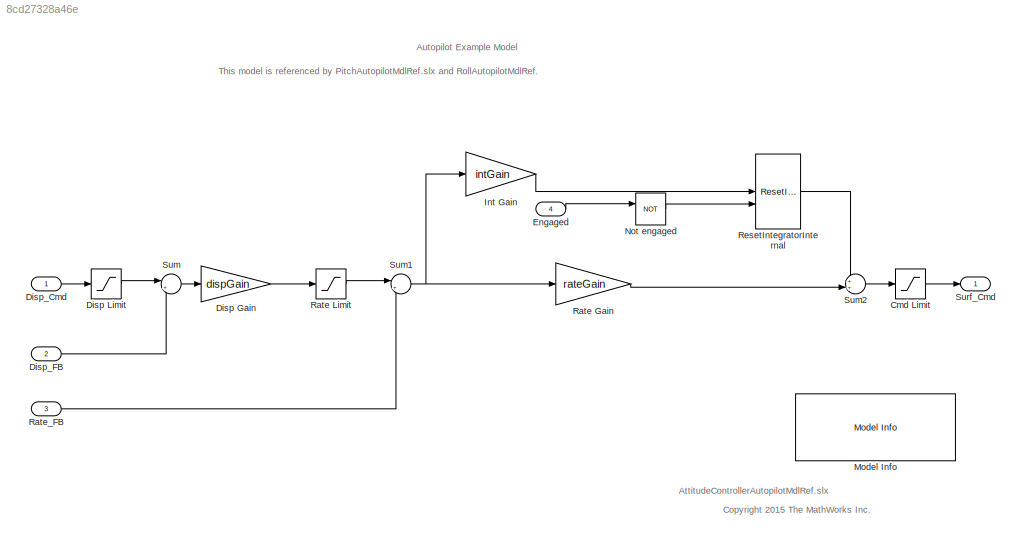
MODEL slx_8cd27328a46e
KIND model
CONFIG AbsTol = auto
CONFIG EnableMultiTasking = off
CONFIG FixedStep = 1/40
CONFIG MaxStep = auto
CONFIG MinStep = auto
CONFIG RelTol = 1e-3
CONFIG SampleTimeConstraint = Unconstrained
CONFIG SolverName = FixedStepDiscrete
CONFIG StartTime = 0.0
CONFIG StopTime = 25
WORKSPACE source: mxarray member
WORKSPACE cmdLim: Simulink.Parameter (value not decoded)
WORKSPACE dispGain: Simulink.Parameter (value not decoded)
WORKSPACE dispLim: Simulink.Parameter (value not decoded)
WORKSPACE intGain: Simulink.Parameter (value not decoded)
WORKSPACE intLim: Simulink.Parameter (value not decoded)
WORKSPACE rateGain: Simulink.Parameter (value not decoded)
WORKSPACE rateLim: Simulink.Parameter (value not decoded)
BLOCK [Saturate] Cmd Limit
  AttributesFormatString = %<LowerLimit> to %<UpperLimit> (deg)
  LowerLimit = -cmdLim
  UpperLimit = cmdLim
BLOCK [Gain] Disp Gain
  Gain = dispGain
BLOCK [Saturate] Disp Limit
  AttributesFormatString = %<LowerLimit> to %<UpperLimit> (deg)
  LowerLimit = -dispLim
  UpperLimit = dispLim
BLOCK [Inport] Disp_Cmd
  OutDataTypeStr = double
  PortDimensions = 1
  SampleTime = 1/40
  SignalType = real
BLOCK [Inport] Disp_FB 
  OutDataTypeStr = double
  Port = 2
  PortDimensions = 1
  SampleTime = 1/40
  SignalType = real
BLOCK [Inport] Engaged
  OutDataTypeStr = boolean
  Port = 4
  PortDimensions = 1
  SampleTime = 1/40
BLOCK [Gain] Int Gain
  Gain = intGain
BLOCK [Reference] Model Info  REF=simulink/Model-Wide
Utilities/Model Info
  SourceBlock = simulink/Model-Wide\nUtilities/Model Info
  SourceType = CMBlock
BLOCK [Logic] Not engaged
  AllPortsSameDT = off
  IconShape = distinctive
  Operator = NOT
  OutDataTypeStr = boolean
BLOCK [Gain] Rate Gain
  Gain = rateGain
BLOCK [Saturate] Rate Limit
  AttributesFormatString = %<LowerLimit> to %<UpperLimit> (deg/sec)
  LowerLimit = -rateLim
  UpperLimit = rateLim
BLOCK [Inport] Rate_FB
  OutDataTypeStr = double
  Port = 3
  PortDimensions = 1
  SampleTime = 1/40
  SignalType = real
BLOCK [Reference] ResetIntegratorInternal  REF=LibraryAutopilot/ResetIntegratorInternal
  AttributesFormatString = K = %<K>\n-%<UL> to %<UL>\nIC = %<IC>
  SourceBlock = LibraryAutopilot/ResetIntegratorInternal
  SourceType = SLCI_Level_Reset_Integrator
BLOCK [Sum] Sum
  Inputs = |+-
BLOCK [Sum] Sum1
  Inputs = |+-
BLOCK [Sum] Sum2
  Inputs = ++|
BLOCK [Outport] Surf_Cmd
  OutDataTypeStr = double
  PortDimensions = 1
  SampleTime = 1/40
  SignalType = real
ANNOTATION (root): This model is referenced by PitchAutopilotMdlRef.slx and RollAutopilotMdlRef.
ANNOTATION (root): AttitudeControllerAutopilotMdlRef.slx
ANNOTATION (root): Autopilot Example Model
ANNOTATION (root): <copyright redacted>
LINE Cmd Limit:1 -> Surf_Cmd:1
LINE Disp Gain:1 -> Rate Limit:1
LINE Disp Limit:1 -> Sum:1
LINE Disp_Cmd:1 -> Disp Limit:1
LINE Disp_FB :1 -> Sum:2
LINE Engaged:1 -> Not engaged:1
LINE Int Gain:1 -> ResetIntegratorInternal:1
LINE Not engaged:1 -> ResetIntegratorInternal:2
LINE Rate Gain:1 -> Sum2:2
LINE Rate Limit:1 -> Sum1:1
LINE Rate_FB:1 -> Sum1:2
LINE ResetIntegratorInternal:1 -> Sum2:1
NET Sum1:1 -> Int Gain:1, Rate Gain:1
LINE Sum2:1 -> Cmd Limit:1
LINE Sum:1 -> Disp Gain:1
note: NET lines group one-source signal fan-out (src -> all destinations, sorted); 1:1 wires keep LINE
